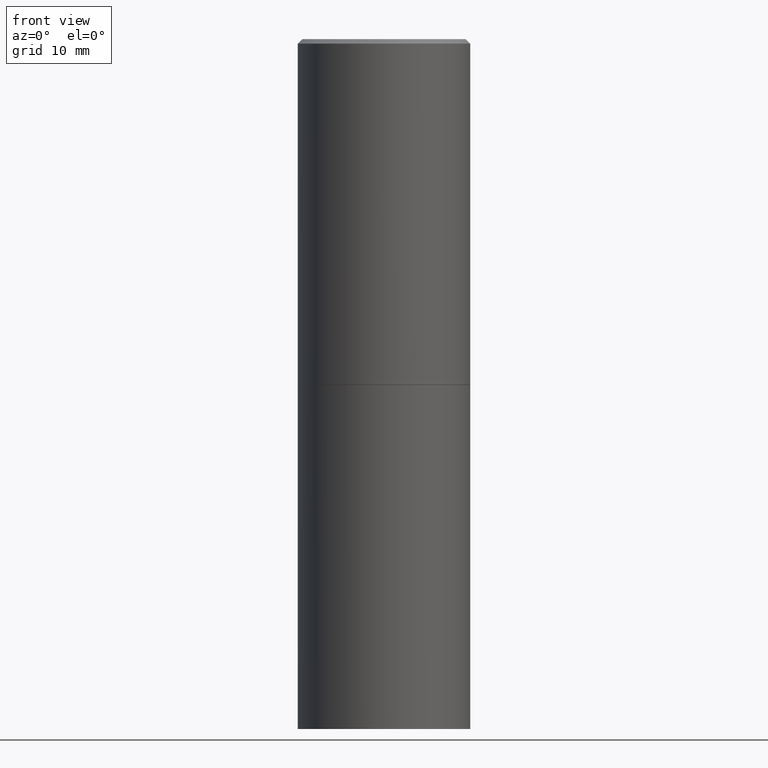
[diagram: clean part render]
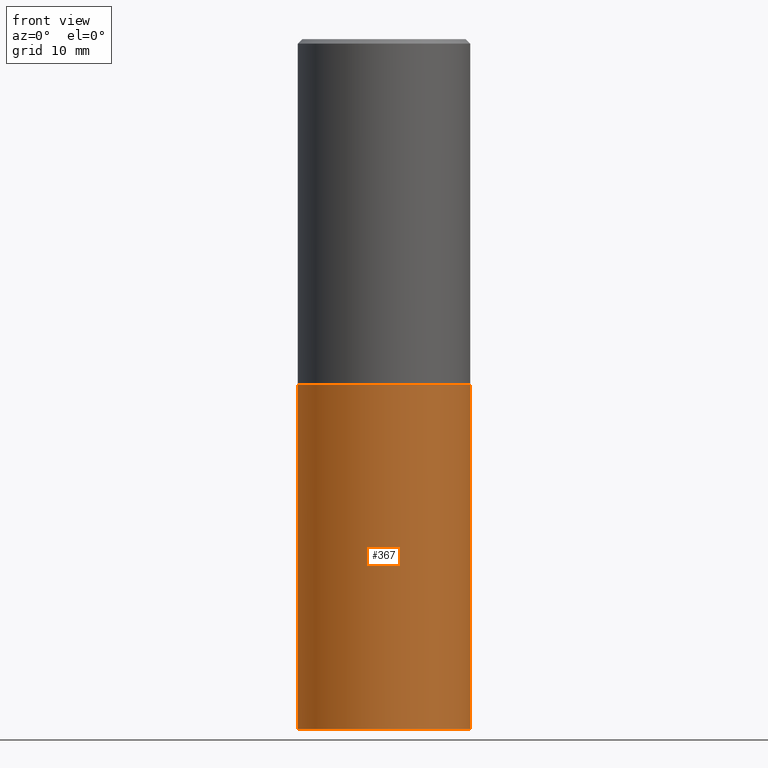
[diagram: same view with one face highlighted and labeled with its STEP entity id]
A machine part, front view. The second image highlights one B-rep face of the part: STEP entity #367.
In plain terms, the highlighted cylindrical surface (partial cylindrical patch) has radius 9.525 mm, axis along (-0, 0, 1).
Its self-contained STEP definition (entity closure, byte-faithful):
#8 = VERTEX_POINT ( 'NONE', #231 ) ;
#27 = DIRECTION ( 'NONE',  ( 1.000000000000000000, -6.982962677686266711E-15, 0.000000000000000000 ) ) ;
#35 = CARTESIAN_POINT ( 'NONE',  ( 0.3750000000000019984, -1.304713076569377647E-14, -3.000000000000000444 ) ) ;
#40 = DIRECTION ( 'NONE',  ( 1.000000000000000000, -6.982962677686265922E-15, 4.876176775795935793E-29 ) ) ;
#41 = EDGE_CURVE ( 'NONE', #355, #8, #198, .T. ) ;
#49 = CARTESIAN_POINT ( 'NONE',  ( 0.3750000000000000555, -2.618611004132350016E-15, 1.828566290923476203E-29 ) ) ;
#50 = CIRCLE ( 'NONE', #318, 0.3750000000000000555 ) ;
#62 = DIRECTION ( 'NONE',  ( -2.445468806185136597E-29, 3.491481338843145583E-15, 1.000000000000000000 ) ) ;
#76 = VECTOR ( 'NONE', #308, 39.37007874015748143 ) ;
#90 = VERTEX_POINT ( 'NONE', #254 ) ;
#108 = EDGE_CURVE ( 'NONE', #219, #90, #315, .T. ) ;
#109 = VECTOR ( 'NONE', #316, 39.37007874015748143 ) ;
#122 = AXIS2_PLACEMENT_3D ( 'NONE', #332, #62, #217 ) ;
#135 = ORIENTED_EDGE ( 'NONE', *, *, #108, .F. ) ;
#163 = CIRCLE ( 'NONE', #122, 0.3750000000000000555 ) ;
#180 = EDGE_LOOP ( 'NONE', ( #135, #352, #259, #329 ) ) ;
#192 = EDGE_CURVE ( 'NONE', #219, #355, #50, .T. ) ;
#193 = DIRECTION ( 'NONE',  ( -2.445468806185136597E-29, 3.491481338843145583E-15, 1.000000000000000000 ) ) ;
#198 = LINE ( 'NONE', #49, #109 ) ;
#200 = AXIS2_PLACEMENT_3D ( 'NONE', #365, #193, #40 ) ;
#206 = CARTESIAN_POINT ( 'NONE',  ( -0.3750000000000019984, -7.855833012397073715E-15, -3.000000000000000444 ) ) ;
#208 = CARTESIAN_POINT ( 'NONE',  ( 7.336406418555409790E-29, -1.047444401652943635E-14, -3.000000000000000444 ) ) ;
#217 = DIRECTION ( 'NONE',  ( 1.000000000000000000, -6.982962677686266711E-15, 0.000000000000000000 ) ) ;
#219 = VERTEX_POINT ( 'NONE', #206 ) ;
#231 = CARTESIAN_POINT ( 'NONE',  ( 0.3750000000000000555, -7.869449789618557499E-15, -1.503900000000000237 ) ) ;
#254 = CARTESIAN_POINT ( 'NONE',  ( -0.3750000000000000555, -5.198106141907447010E-15, -1.503900000000000237 ) ) ;
#259 = ORIENTED_EDGE ( 'NONE', *, *, #41, .T. ) ;
#287 = CARTESIAN_POINT ( 'NONE',  ( -0.3750000000000000555, 2.664535259100376091E-15, -1.844600658845589598E-29 ) ) ;
#308 = DIRECTION ( 'NONE',  ( -2.445468806185136877E-29, 3.491481338843145188E-15, 1.000000000000000000 ) ) ;
#315 = LINE ( 'NONE', #287, #76 ) ;
#316 = DIRECTION ( 'NONE',  ( -2.445468806185136877E-29, 3.491481338843145188E-15, 1.000000000000000000 ) ) ;
#318 = AXIS2_PLACEMENT_3D ( 'NONE', #208, #323, #27 ) ;
#323 = DIRECTION ( 'NONE',  ( -2.445468806185136597E-29, 3.491481338843145583E-15, 1.000000000000000000 ) ) ;
#329 = ORIENTED_EDGE ( 'NONE', *, *, #371, .F. ) ;
#332 = CARTESIAN_POINT ( 'NONE',  ( 3.677740537621827962E-29, -5.250838785486207482E-15, -1.503900000000000237 ) ) ;
#342 = CYLINDRICAL_SURFACE ( 'NONE', #200, 0.3750000000000000555 ) ;
#352 = ORIENTED_EDGE ( 'NONE', *, *, #192, .T. ) ;
#355 = VERTEX_POINT ( 'NONE', #35 ) ;
#365 = CARTESIAN_POINT ( 'NONE',  ( 0.000000000000000000, 0.000000000000000000, 0.000000000000000000 ) ) ;
#367 = ADVANCED_FACE ( 'NONE', ( #368 ), #342, .T. ) ;
#368 = FACE_OUTER_BOUND ( 'NONE', #180, .T. ) ;
#371 = EDGE_CURVE ( 'NONE', #90, #8, #163, .T. ) ;